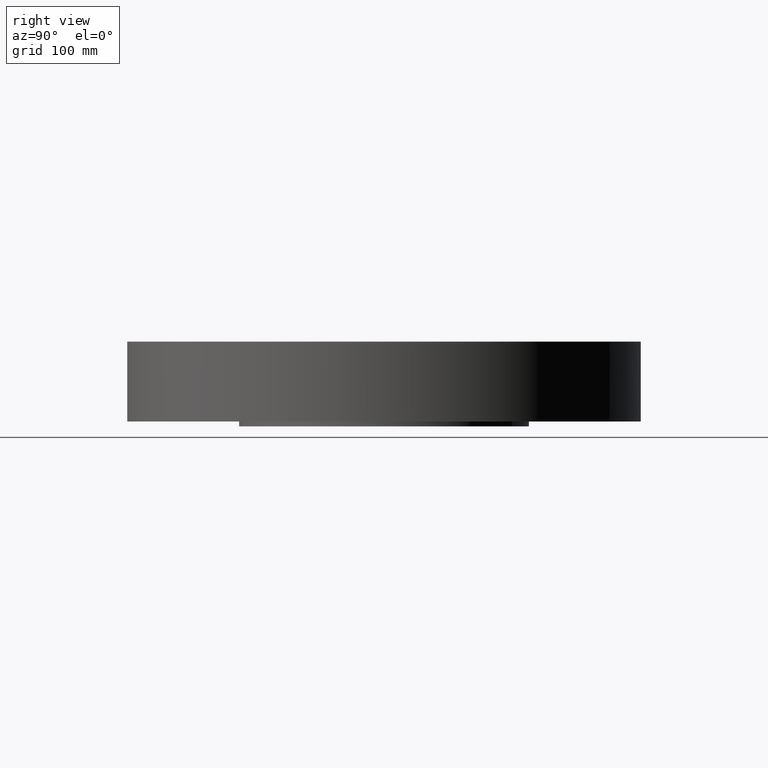
[diagram: clean part render]
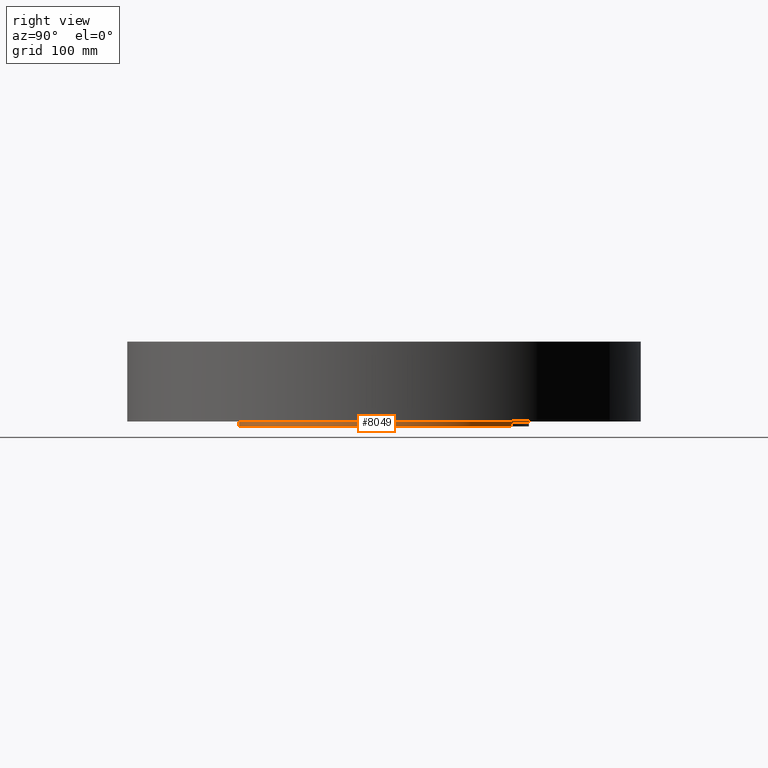
[diagram: same view with one face highlighted and labeled with its STEP entity id]
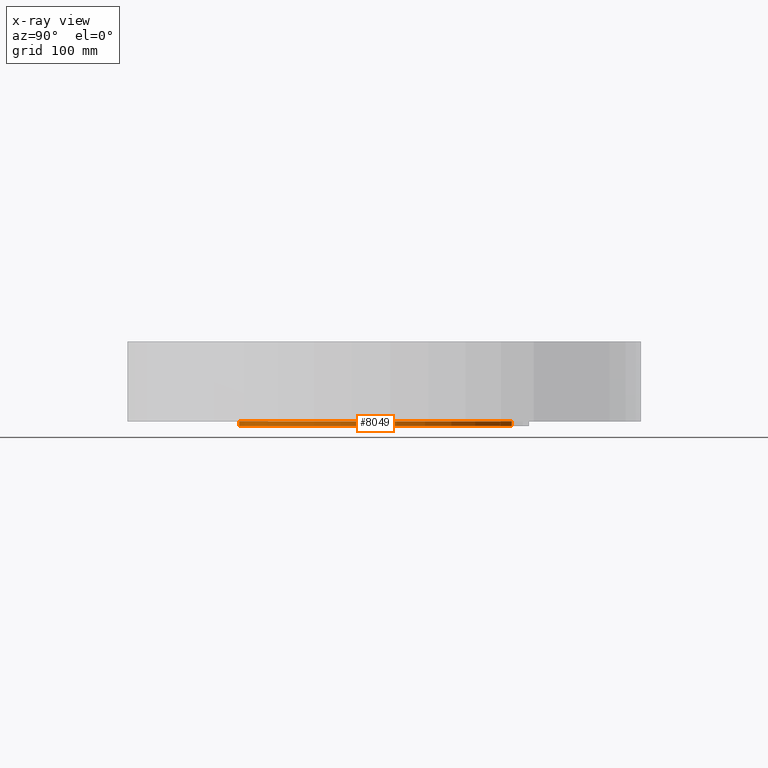
[diagram: x-ray of the same camera — body ghosted, the highlighted face saturated]
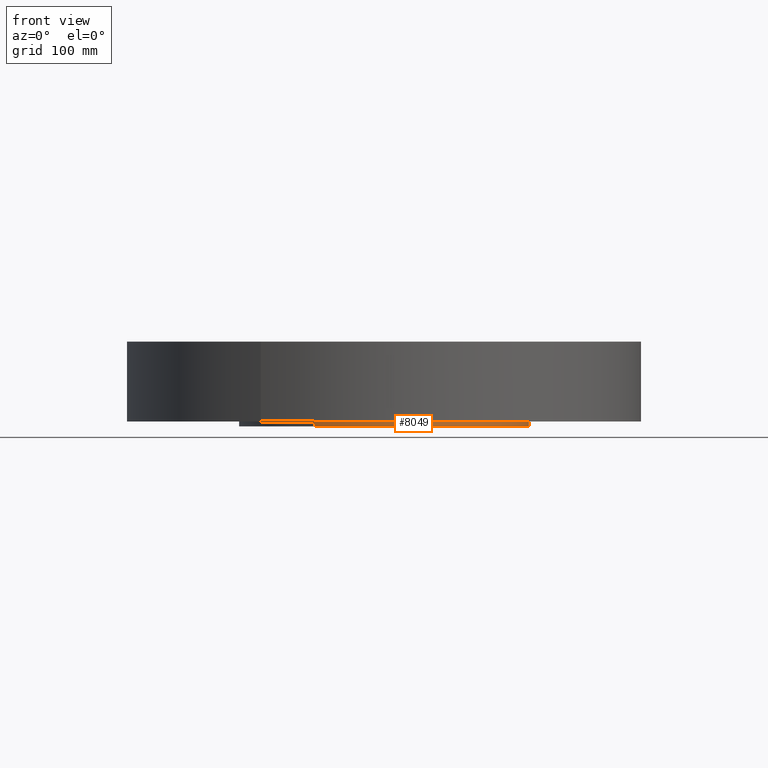
[diagram: same view with one face highlighted and labeled with its STEP entity id]
A machine part, right view. The second image highlights one B-rep face of the part: STEP entity #8049.
The next image is the same camera in x-ray: the body ghosted, the highlighted face saturated — about 0% of this face is hidden behind the body in this view.
A second angle (front view) of the same face is appended — the face is thin or edge-on in the first view.
In plain terms, the highlighted cylindrical surface (partial cylindrical patch) has radius 190.5 mm, axis along (0, 0, -1).
Its self-contained STEP definition (entity closure, byte-faithful):
#7239=AXIS2_PLACEMENT_3D('Circle Axis2P3D',#7237,#7238,$) ;
#8022=AXIS2_PLACEMENT_3D('Cylinder Axis2P3D',#8019,#8020,#8021) ;
#8026=AXIS2_PLACEMENT_3D('Circle Axis2P3D',#8024,#8025,$) ;
#7237=CARTESIAN_POINT('Axis2P3D Location',(0.,0.,0.)) ;
#7241=CARTESIAN_POINT('Vertex',(3.59569153955,6.5818692142,-3.07715358006E-014)) ;
#7243=CARTESIAN_POINT('Vertex',(-3.59569153955,-6.5818692142,-3.07715358006E-014)) ;
#8019=CARTESIAN_POINT('Axis2P3D Location',(0.,0.,1.93500000001)) ;
#8024=CARTESIAN_POINT('Axis2P3D Location',(0.,0.,-0.250000000001)) ;
#8028=CARTESIAN_POINT('Vertex',(3.59569153955,6.5818692142,-0.250000000001)) ;
#8030=CARTESIAN_POINT('Vertex',(-3.59569153955,-6.5818692142,-0.250000000001)) ;
#8033=CARTESIAN_POINT('Line Origine',(3.59569153955,6.5818692142,-0.125000000001)) ;
#8038=CARTESIAN_POINT('Line Origine',(-3.59569153955,-6.5818692142,-0.125000000001)) ;
#7238=DIRECTION('Axis2P3D Direction',(0.,0.,-0.0393700787402)) ;
#8020=DIRECTION('Axis2P3D Direction',(0.,0.,-0.0393700787402)) ;
#8021=DIRECTION('Axis2P3D XDirection',(-0.0188750212049,-0.0345504945626,0.)) ;
#8025=DIRECTION('Axis2P3D Direction',(0.,0.,-0.0393700787402)) ;
#8034=DIRECTION('Vector Direction',(0.,0.,-0.0393700787402)) ;
#8039=DIRECTION('Vector Direction',(0.,0.,-0.0393700787402)) ;
#8035=VECTOR('Line Direction',#8034,0.0393700787402) ;
#8040=VECTOR('Line Direction',#8039,0.0393700787402) ;
#8044=ORIENTED_EDGE('',*,*,#8032,.F.) ;
#8045=ORIENTED_EDGE('',*,*,#8037,.T.) ;
#8046=ORIENTED_EDGE('',*,*,#7245,.T.) ;
#8047=ORIENTED_EDGE('',*,*,#8042,.F.) ;
#8049=ADVANCED_FACE('PartBody',(#8048),#8023,.T.) ;
#7240=CIRCLE('generated circle',#7239,7.50000000003) ;
#8027=CIRCLE('generated circle',#8026,7.50000000003) ;
#8023=CYLINDRICAL_SURFACE('generated cylinder',#8022,7.50000000003) ;
#7245=EDGE_CURVE('',#7242,#7244,#7240,.T.) ;
#8032=EDGE_CURVE('',#8029,#8031,#8027,.T.) ;
#8037=EDGE_CURVE('',#8029,#7242,#8036,.F.) ;
#8042=EDGE_CURVE('',#8031,#7244,#8041,.F.) ;
#8043=EDGE_LOOP('',(#8044,#8045,#8046,#8047)) ;
#8048=FACE_OUTER_BOUND('',#8043,.T.) ;
#8036=LINE('Line',#8033,#8035) ;
#8041=LINE('Line',#8038,#8040) ;
#7242=VERTEX_POINT('',#7241) ;
#7244=VERTEX_POINT('',#7243) ;
#8029=VERTEX_POINT('',#8028) ;
#8031=VERTEX_POINT('',#8030) ;